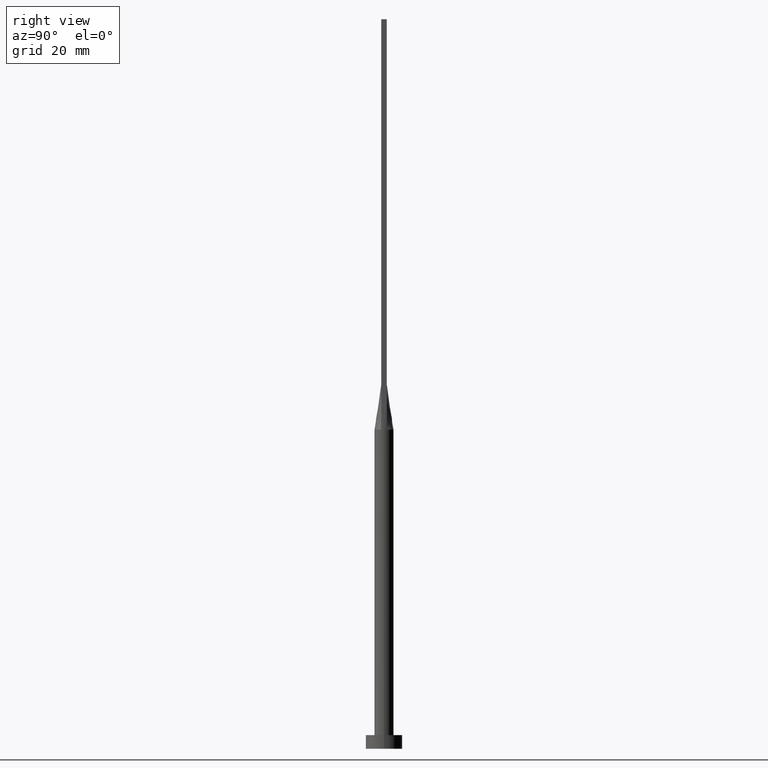
[diagram: clean part render]
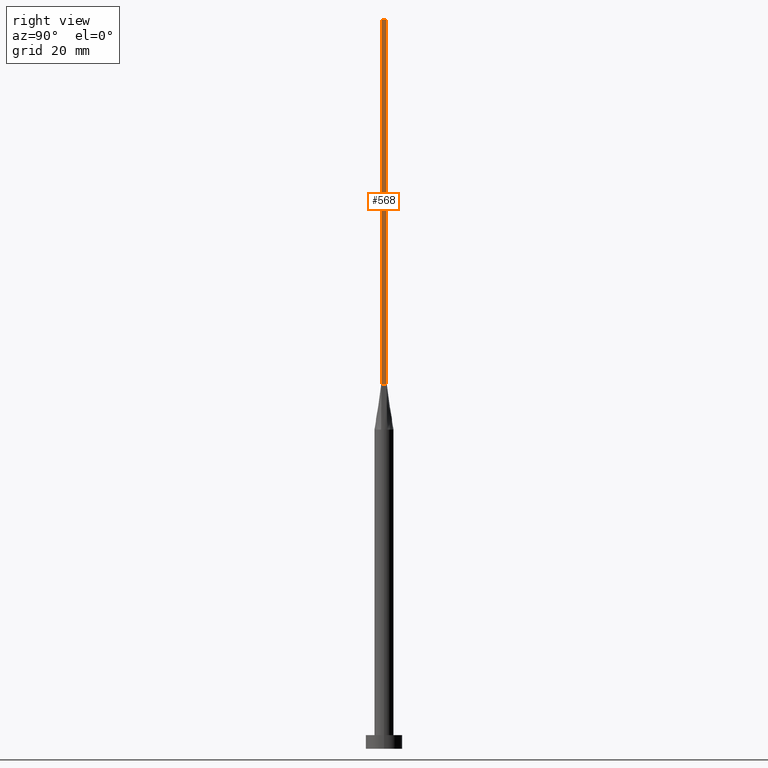
[diagram: same view with one face highlighted and labeled with its STEP entity id]
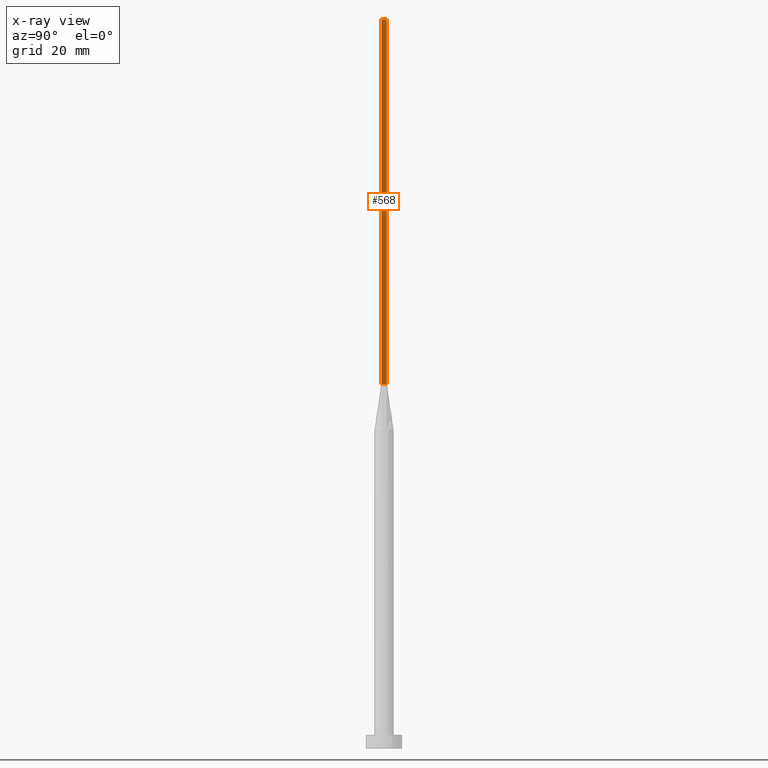
[diagram: x-ray of the same camera — body ghosted, the highlighted face saturated]
A machine part, right view. The second image highlights one B-rep face of the part: STEP entity #568.
The next image is the same camera in x-ray: the body ghosted, the highlighted face saturated — about 0% of this face is hidden behind the body in this view.
In plain terms, the highlighted planar face has unit normal (-1, 0, 0).
Its self-contained STEP definition (entity closure, byte-faithful):
#33 = DIRECTION ( 'NONE',  ( -0.000000000000000000, -0.000000000000000000, -1.000000000000000000 ) ) ;
#42 = VECTOR ( 'NONE', #299, 1000.000000000000000 ) ;
#43 = LINE ( 'NONE', #402, #42 ) ;
#79 = LINE ( 'NONE', #400, #543 ) ;
#84 = CARTESIAN_POINT ( 'NONE',  ( 1.899999999999999023, -0.5999999999999997558, 160.0000000000000000 ) ) ;
#86 = ORIENTED_EDGE ( 'NONE', *, *, #466, .F. ) ;
#90 = VERTEX_POINT ( 'NONE', #104 ) ;
#101 = LINE ( 'NONE', #433, #266 ) ;
#104 = CARTESIAN_POINT ( 'NONE',  ( 1.899999999999999689, 0.6000000000000001998, 80.00000000000000000 ) ) ;
#164 = EDGE_CURVE ( 'NONE', #534, #565, #43, .T. ) ;
#184 = ORIENTED_EDGE ( 'NONE', *, *, #551, .T. ) ;
#185 = FACE_OUTER_BOUND ( 'NONE', #197, .T. ) ;
#186 = VECTOR ( 'NONE', #408, 1000.000000000000000 ) ;
#197 = EDGE_LOOP ( 'NONE', ( #374, #86, #567, #184 ) ) ;
#221 = DIRECTION ( 'NONE',  ( -1.000000000000000000, 5.421010862427522170E-16, 0.000000000000000000 ) ) ;
#227 = DIRECTION ( 'NONE',  ( -5.421010862427522170E-16, -1.000000000000000000, 0.000000000000000000 ) ) ;
#250 = AXIS2_PLACEMENT_3D ( 'NONE', #537, #221, #227 ) ;
#266 = VECTOR ( 'NONE', #563, 1000.000000000000000 ) ;
#299 = DIRECTION ( 'NONE',  ( 5.421010862427522170E-16, 1.000000000000000000, 0.000000000000000000 ) ) ;
#304 = CARTESIAN_POINT ( 'NONE',  ( 1.899999999999999689, 0.6000000000000001998, 160.0000000000000000 ) ) ;
#316 = CARTESIAN_POINT ( 'NONE',  ( 1.899999999999999023, -0.5999999999999997558, 80.00000000000000000 ) ) ;
#327 = EDGE_CURVE ( 'NONE', #405, #90, #101, .T. ) ;
#352 = PLANE ( 'NONE',  #250 ) ;
#353 = LINE ( 'NONE', #84, #186 ) ;
#374 = ORIENTED_EDGE ( 'NONE', *, *, #327, .T. ) ;
#400 = CARTESIAN_POINT ( 'NONE',  ( 1.899999999999999689, 0.6000000000000001998, 160.0000000000000000 ) ) ;
#402 = CARTESIAN_POINT ( 'NONE',  ( 1.899999999999999023, -0.5999999999999997558, 160.0000000000000000 ) ) ;
#405 = VERTEX_POINT ( 'NONE', #316 ) ;
#408 = DIRECTION ( 'NONE',  ( -0.000000000000000000, -0.000000000000000000, -1.000000000000000000 ) ) ;
#433 = CARTESIAN_POINT ( 'NONE',  ( 1.899999999999999689, 0.6000000000000001998, 80.00000000000000000 ) ) ;
#466 = EDGE_CURVE ( 'NONE', #565, #90, #79, .T. ) ;
#478 = CARTESIAN_POINT ( 'NONE',  ( 1.899999999999999023, -0.5999999999999997558, 160.0000000000000000 ) ) ;
#534 = VERTEX_POINT ( 'NONE', #478 ) ;
#537 = CARTESIAN_POINT ( 'NONE',  ( 1.899999999999999023, -0.5999999999999997558, 160.0000000000000000 ) ) ;
#543 = VECTOR ( 'NONE', #33, 1000.000000000000000 ) ;
#551 = EDGE_CURVE ( 'NONE', #534, #405, #353, .T. ) ;
#563 = DIRECTION ( 'NONE',  ( -1.807003620809174139E-16, 1.000000000000000000, -0.000000000000000000 ) ) ;
#565 = VERTEX_POINT ( 'NONE', #304 ) ;
#567 = ORIENTED_EDGE ( 'NONE', *, *, #164, .F. ) ;
#568 = ADVANCED_FACE ( 'NONE', ( #185 ), #352, .F. ) ;